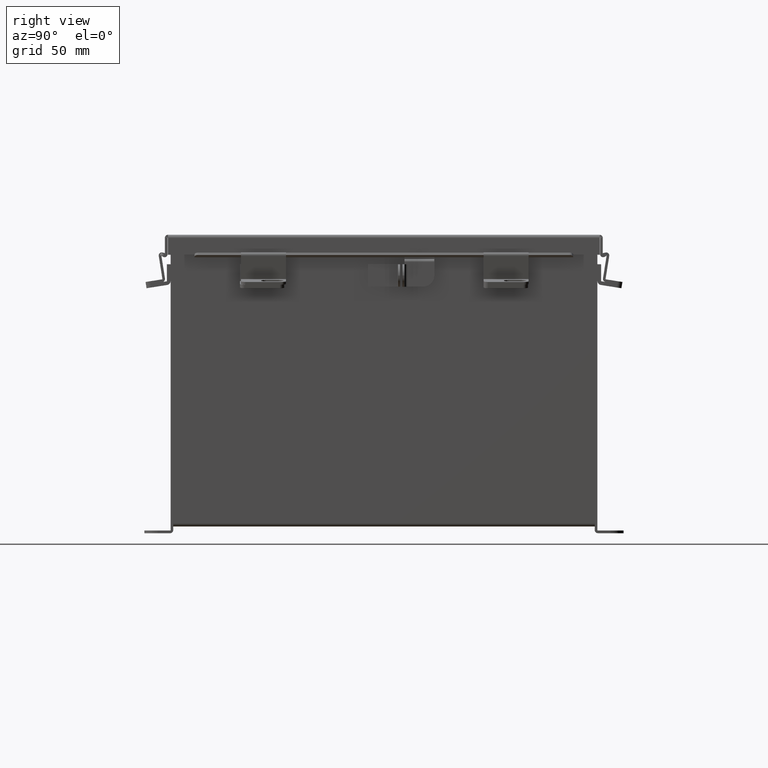
[diagram: clean part render]
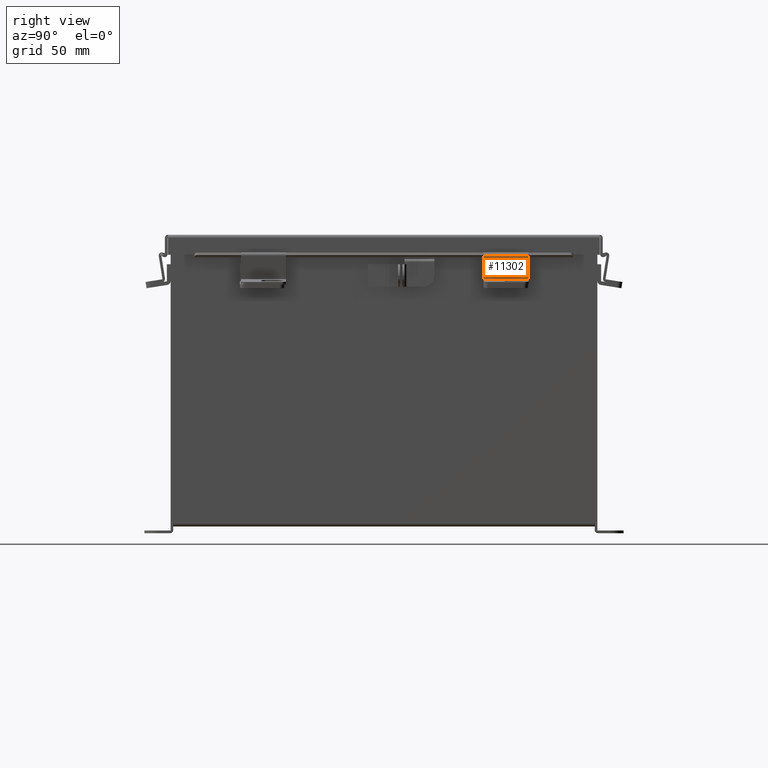
[diagram: same view with one face highlighted and labeled with its STEP entity id]
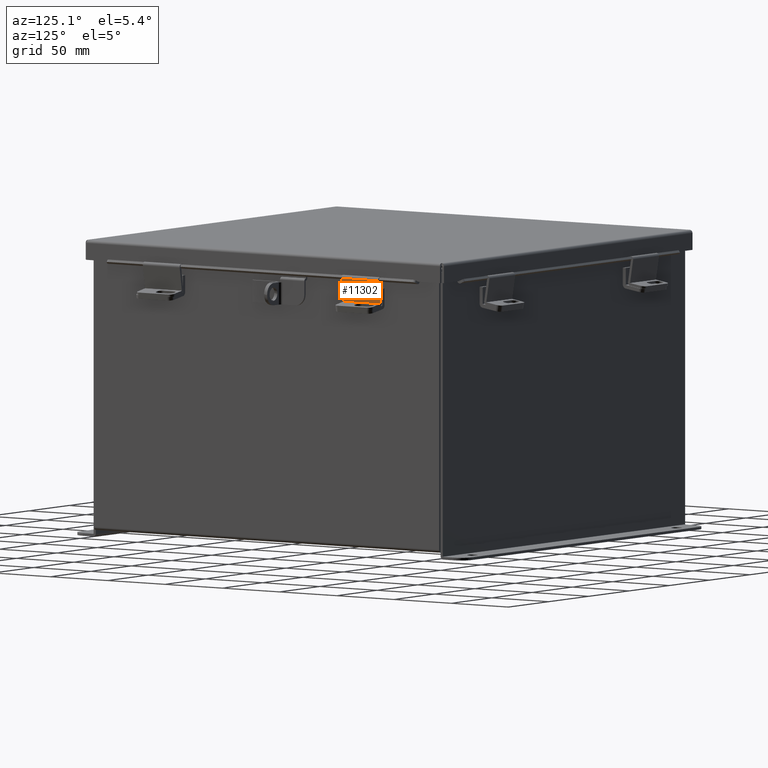
[diagram: same view with one face highlighted and labeled with its STEP entity id]
A machine part, right view. The second image highlights one B-rep face of the part: STEP entity #11302.
A second angle (auxiliary view) of the same face is appended — the face is thin or edge-on in the first view.
In plain terms, the highlighted planar face has unit normal (-0.9877, 0, 0.1564).
Its self-contained STEP definition (entity closure, byte-faithful):
#750 = EDGE_CURVE ( 'NONE', #5142, #1511, #14935, .T. ) ;
#1351 = LINE ( 'NONE', #4598, #5060 ) ;
#1463 = LINE ( 'NONE', #7774, #15661 ) ;
#1511 = VERTEX_POINT ( 'NONE', #8158 ) ;
#1534 = CARTESIAN_POINT ( 'NONE',  ( 0.6325000000000000600, -0.4174999999999998700, 0.0000000000000000000 ) ) ;
#2221 = DIRECTION ( 'NONE',  ( -1.000000000000000000, -0.0000000000000000000, -0.0000000000000000000 ) ) ;
#2461 = CARTESIAN_POINT ( 'NONE',  ( 0.6325000000000000600, 0.4175000000000001500, 0.0000000000000000000 ) ) ;
#2964 = FACE_OUTER_BOUND ( 'NONE', #6468, .T. ) ;
#3387 = ORIENTED_EDGE ( 'NONE', *, *, #14272, .T. ) ;
#4007 = VECTOR ( 'NONE', #16959, 39.37007874015748100 ) ;
#4598 = CARTESIAN_POINT ( 'NONE',  ( -0.6325000000000000600, -0.4174999999999998700, 0.0000000000000000000 ) ) ;
#5060 = VECTOR ( 'NONE', #5886, 39.37007874015748100 ) ;
#5142 = VERTEX_POINT ( 'NONE', #9645 ) ;
#5227 = EDGE_CURVE ( 'NONE', #1511, #15049, #1463, .T. ) ;
#5265 = PLANE ( 'NONE',  #7503 ) ;
#5588 = EDGE_CURVE ( 'NONE', #5142, #17856, #17815, .T. ) ;
#5886 = DIRECTION ( 'NONE',  ( -0.0000000000000000000, -1.000000000000000000, -0.0000000000000000000 ) ) ;
#6468 = EDGE_LOOP ( 'NONE', ( #15611, #3387, #11489, #9657 ) ) ;
#6659 = DIRECTION ( 'NONE',  ( -1.000000000000000000, 0.0000000000000000000, -0.0000000000000000000 ) ) ;
#7159 = DIRECTION ( 'NONE',  ( -1.000000000000000000, 0.0000000000000000000, 0.0000000000000000000 ) ) ;
#7503 = AXIS2_PLACEMENT_3D ( 'NONE', #2461, #14851, #6659 ) ;
#7774 = CARTESIAN_POINT ( 'NONE',  ( 0.6325000000000000600, 0.3243453803252444000, -1.024442997624098700E-016 ) ) ;
#8158 = CARTESIAN_POINT ( 'NONE',  ( 0.6324999999999998400, 0.3243453803252444000, -1.024442997624098700E-016 ) ) ;
#9645 = CARTESIAN_POINT ( 'NONE',  ( 0.6325000000000000600, -0.3344999999999998500, -3.734948428837859800E-017 ) ) ;
#9657 = ORIENTED_EDGE ( 'NONE', *, *, #750, .T. ) ;
#9860 = CARTESIAN_POINT ( 'NONE',  ( 0.6325000000000000600, -0.3344999999999998500, -3.734948428837859800E-017 ) ) ;
#10199 = CARTESIAN_POINT ( 'NONE',  ( -0.6325000000000000600, -0.3344999999999998500, -3.734948428837859800E-017 ) ) ;
#11302 = ADVANCED_FACE ( 'NONE', ( #2964 ), #5265, .F. ) ;
#11489 = ORIENTED_EDGE ( 'NONE', *, *, #5588, .F. ) ;
#14131 = VECTOR ( 'NONE', #7159, 39.37007874015748100 ) ;
#14272 = EDGE_CURVE ( 'NONE', #15049, #17856, #1351, .T. ) ;
#14851 = DIRECTION ( 'NONE',  ( 0.0000000000000000000, 0.0000000000000000000, -1.000000000000000000 ) ) ;
#14935 = LINE ( 'NONE', #1534, #4007 ) ;
#15049 = VERTEX_POINT ( 'NONE', #17020 ) ;
#15611 = ORIENTED_EDGE ( 'NONE', *, *, #5227, .T. ) ;
#15661 = VECTOR ( 'NONE', #2221, 39.37007874015748100 ) ;
#16959 = DIRECTION ( 'NONE',  ( 0.0000000000000000000, 1.000000000000000000, 0.0000000000000000000 ) ) ;
#17020 = CARTESIAN_POINT ( 'NONE',  ( -0.6325000000000000600, 0.3243453803252444000, 0.0000000000000000000 ) ) ;
#17815 = LINE ( 'NONE', #9860, #14131 ) ;
#17856 = VERTEX_POINT ( 'NONE', #10199 ) ;